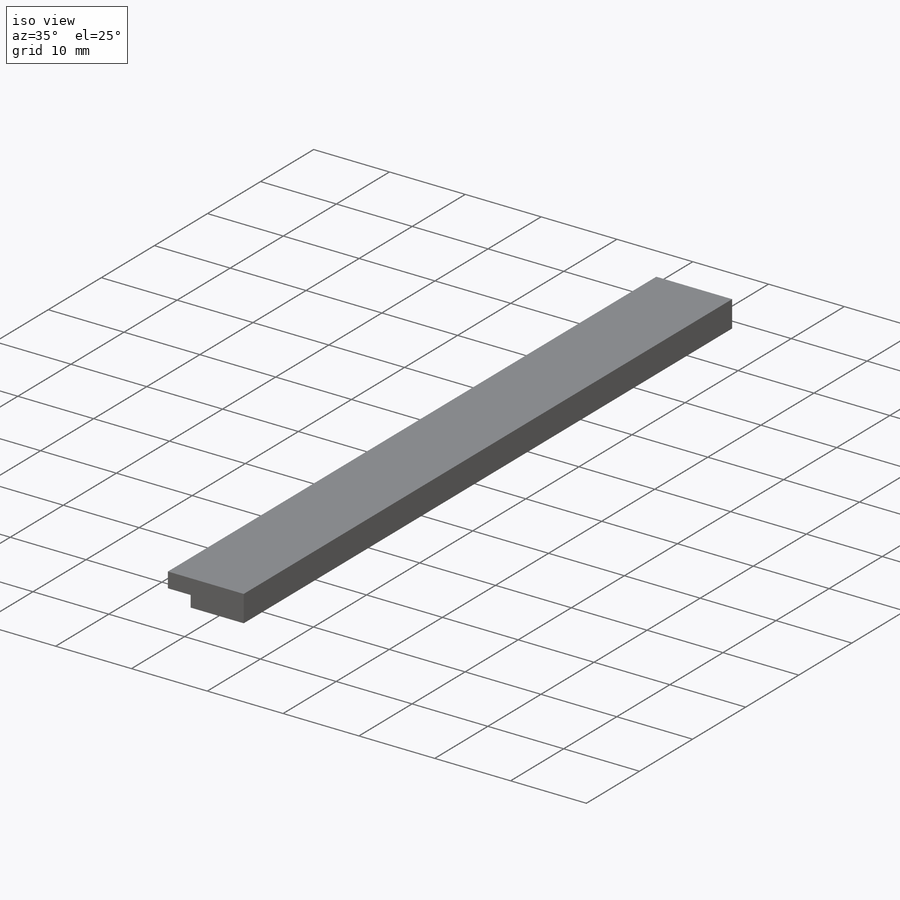
[diagram: iso view]
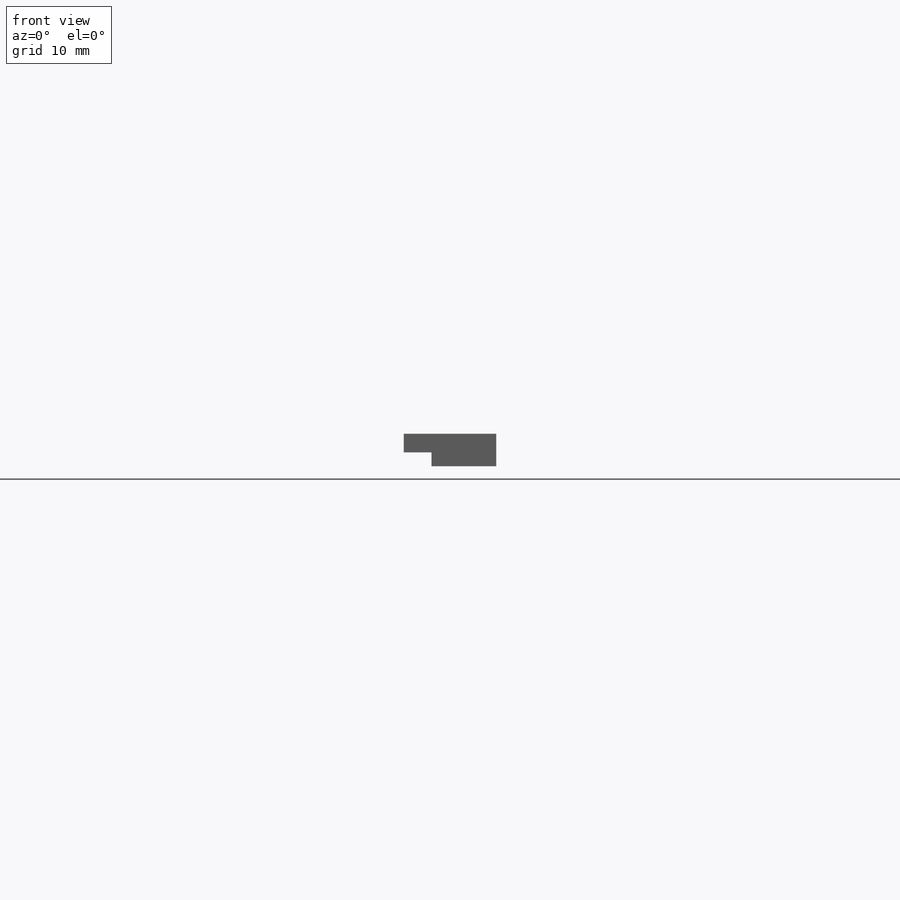
[diagram: front view]
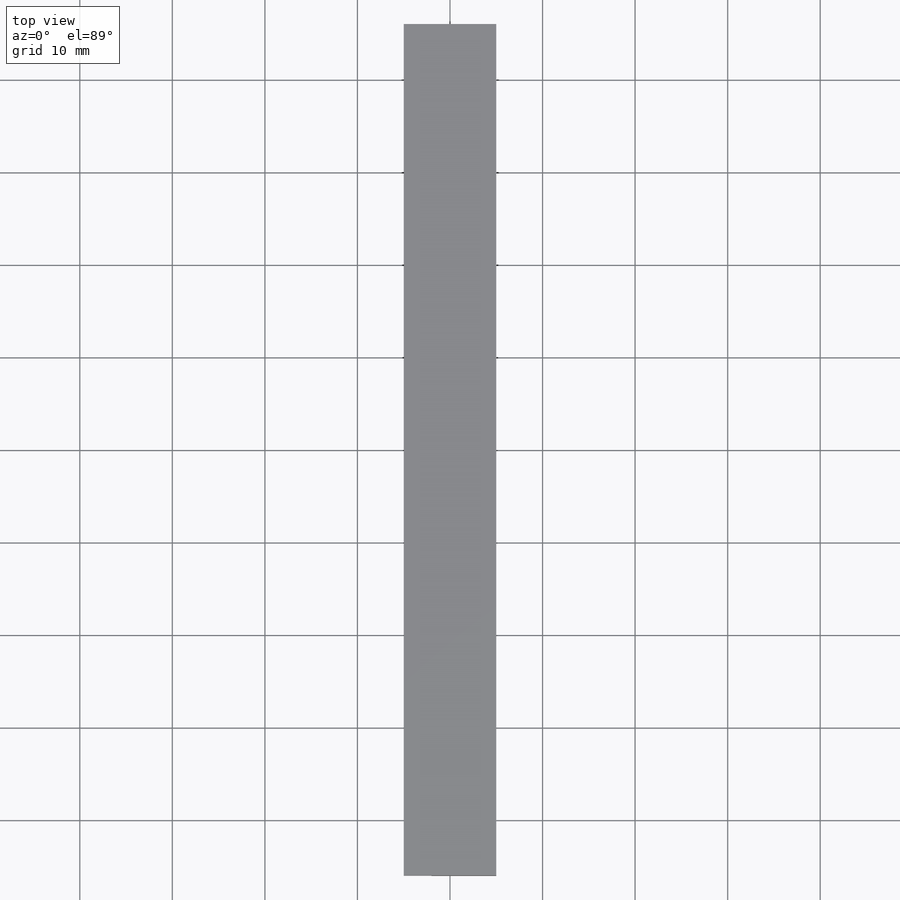
[diagram: top view]
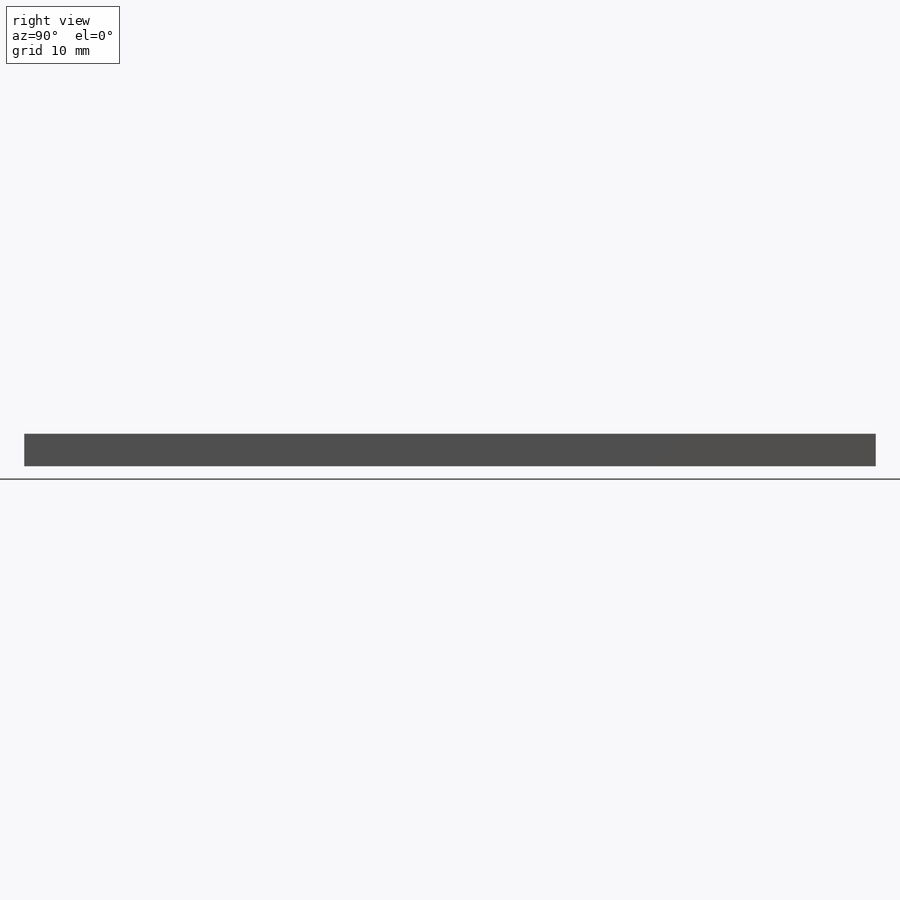
[diagram: right view]
SOLIDWORKS PART (.sldprt)
format: sldprt  version: not decoded by parser v0  size: 216,064 bytes
history: native  units: mm
features: sketch x6, cut_extrude x4, extrude x2, material x1 (+12 scaffold rows collapsed)
feature tree (25):
  scaffold x12  (default folders/planes/origin — collapsed)
  material  "재질 <지정안함>"
  sketch  "스케치1"  dims[D1=92.0mm D2=46.0mm D3=10.0mm D4=5.0mm]
  extrude  "보스-돌출1"  Depth=3.5mm
  sketch  "스케치2"  dims[c1.D1=40.0mm c1.D2=40.0mm c1.D3=7.0mm c1.D4=7.0mm c1.D5=3.5mm c1.D6=7.0mm c1.D7=7.0mm c1.D8=3.5mm c1.D9=~43.486433mm c1.D10=~3.215331mm c2.D9=7.0mm c2.D10=7.0mm c2.D11=3.5mm]
  extrude  "보스-돌출2"  Depth=7mm
  sketch  "스케치3"  dims[D4=~1.016606mm D1=40.0mm D2=40.0mm D3=3.5mm]
  cut_extrude  "컷-돌출1"  Depth=7mm
  sketch  "스케치4"  dims[D1=~2.395368mm]
  cut_extrude  "컷-돌출2"  Depth=1mm
  sketch  "스케치5"  dims[D1=3.0mm D2=1.5mm]
  cut_extrude  "컷-돌출3"  Depth=92mm
  sketch  "스케치6"
  cut_extrude  "컷-돌출4"  Depth=10mm
decode coverage: 11 of 12 modeling features carry decoded parameters
note: ~ marks probable driven/reference dimensions
note: suppression state not decoded; provenance and decode notes live in map.json
